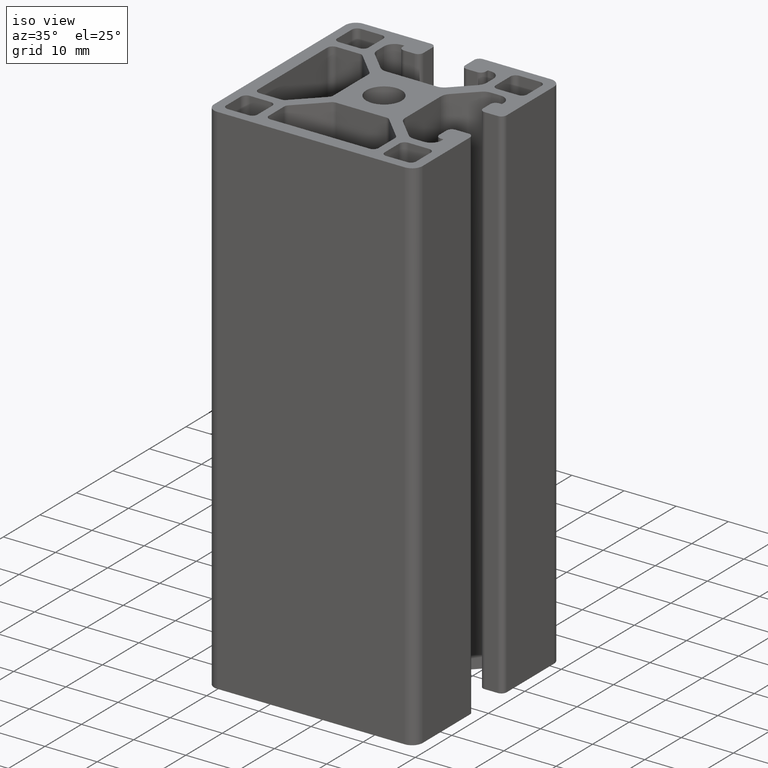
[diagram: clean part render]
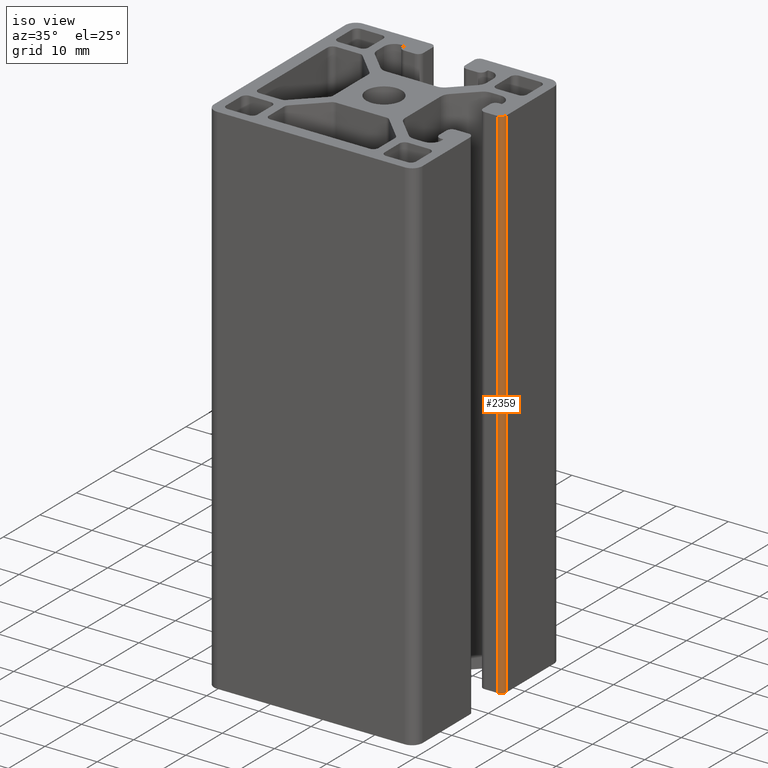
[diagram: same view with one face highlighted and labeled with its STEP entity id]
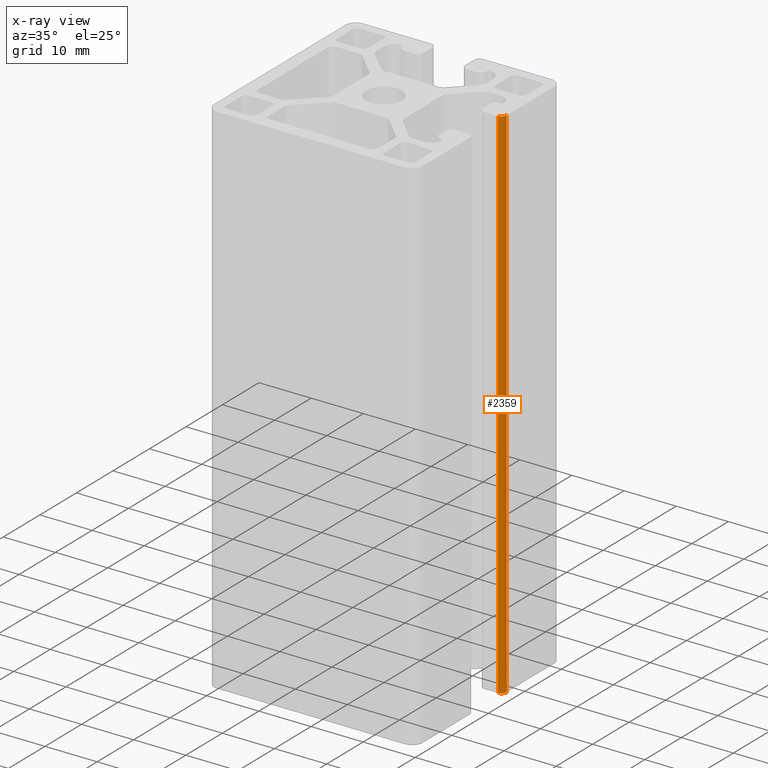
[diagram: x-ray of the same camera — body ghosted, the highlighted face saturated]
A machine part, iso view. The second image highlights one B-rep face of the part: STEP entity #2359.
The next image is the same camera in x-ray: the body ghosted, the highlighted face saturated — about 0% of this face is hidden behind the body in this view.
In plain terms, the highlighted cylindrical surface (edge-blend (fillet) strip) has radius 1 mm, axis along (0, 0, 1).
Its self-contained STEP definition (entity closure, byte-faithful):
#116=CIRCLE('',#2567,0.99999800405115);
#117=CIRCLE('',#2568,0.99999800405115);
#187=CYLINDRICAL_SURFACE('',#2566,0.99999800405115);
#288=FACE_OUTER_BOUND('',#408,.T.);
#408=EDGE_LOOP('',(#1856,#1857,#1858,#1859));
#630=LINE('',#3863,#866);
#631=LINE('',#3866,#867);
#866=VECTOR('',#3154,100.);
#867=VECTOR('',#3157,100.);
#1104=VERTEX_POINT('',#3859);
#1105=VERTEX_POINT('',#3860);
#1106=VERTEX_POINT('',#3862);
#1107=VERTEX_POINT('',#3864);
#1422=EDGE_CURVE('',#1104,#1105,#116,.T.);
#1423=EDGE_CURVE('',#1106,#1104,#630,.T.);
#1424=EDGE_CURVE('',#1107,#1106,#117,.T.);
#1425=EDGE_CURVE('',#1105,#1107,#631,.T.);
#1856=ORIENTED_EDGE('',*,*,#1422,.F.);
#1857=ORIENTED_EDGE('',*,*,#1423,.F.);
#1858=ORIENTED_EDGE('',*,*,#1424,.F.);
#1859=ORIENTED_EDGE('',*,*,#1425,.F.);
#2359=ADVANCED_FACE('',(#288),#187,.T.);
#2566=AXIS2_PLACEMENT_3D('',#3858,#3150,#3151);
#2567=AXIS2_PLACEMENT_3D('',#3861,#3152,#3153);
#2568=AXIS2_PLACEMENT_3D('',#3865,#3155,#3156);
#3150=DIRECTION('center_axis',(0.,0.,1.));
#3151=DIRECTION('ref_axis',(0.,1.,0.));
#3152=DIRECTION('center_axis',(0.,0.,1.));
#3153=DIRECTION('ref_axis',(0.,1.,0.));
#3154=DIRECTION('',(0.,0.,1.));
#3155=DIRECTION('center_axis',(0.,0.,-1.));
#3156=DIRECTION('ref_axis',(0.,1.,0.));
#3157=DIRECTION('',(0.,0.,-1.));
#3858=CARTESIAN_POINT('Origin',(19.0000019959489,4.99999800405114,0.));
#3859=CARTESIAN_POINT('',(19.0000019959489,3.99999999999999,100.));
#3860=CARTESIAN_POINT('',(20.,4.99999800405114,100.));
#3861=CARTESIAN_POINT('Origin',(19.0000019959489,4.99999800405114,100.));
#3862=CARTESIAN_POINT('',(19.0000019959489,3.99999999999999,0.));
#3863=CARTESIAN_POINT('',(19.0000019959489,3.99999999999999,0.));
#3864=CARTESIAN_POINT('',(20.,4.99999800405114,0.));
#3865=CARTESIAN_POINT('Origin',(19.0000019959489,4.99999800405114,0.));
#3866=CARTESIAN_POINT('',(20.,4.99999800405114,0.));